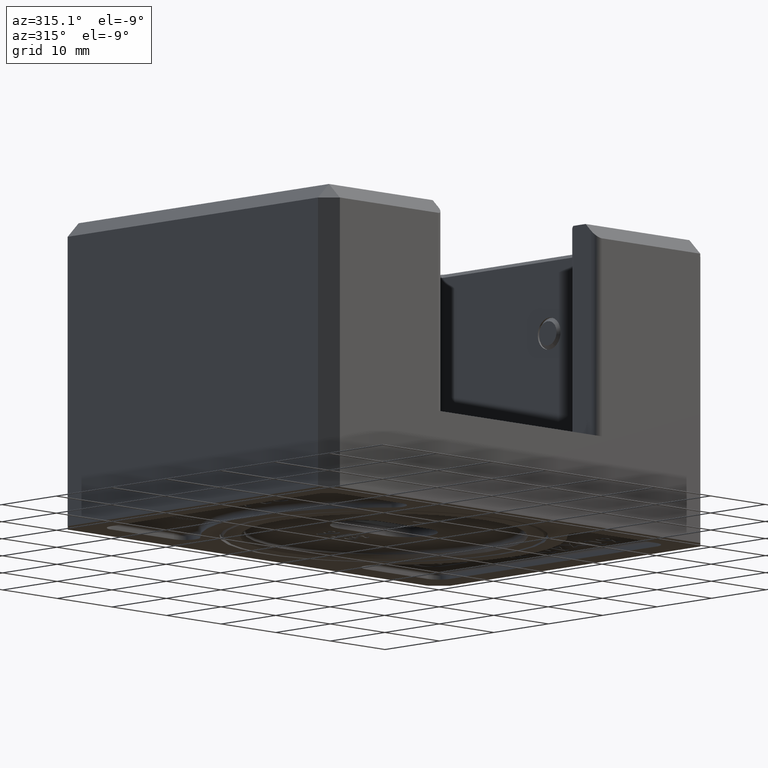
[diagram: clean part render]
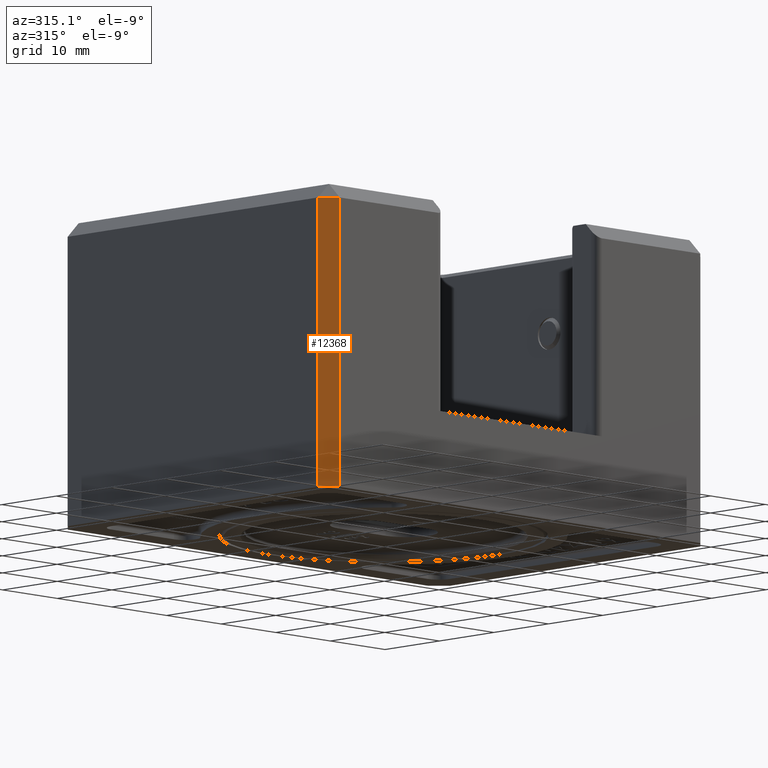
[diagram: same view with one face highlighted and labeled with its STEP entity id]
A machine part, auxiliary view. The second image highlights one B-rep face of the part: STEP entity #12368.
In plain terms, the highlighted planar face has unit normal (0.7071, 0.7071, 0).
Its self-contained STEP definition (entity closure, byte-faithful):
#474 = CARTESIAN_POINT ( 'NONE',  ( -32.99999999999997900, -24.99999999999999600, 20.00000000000000000 ) ) ;
#2286 = VERTEX_POINT ( 'NONE', #4293 ) ;
#2822 = CARTESIAN_POINT ( 'NONE',  ( -32.99999999999997900, -24.99999999999999600, 17.99999999999997200 ) ) ;
#4293 = CARTESIAN_POINT ( 'NONE',  ( -34.99999999999999300, -22.99999999999996800, 17.99999999999997200 ) ) ;
#4561 = ORIENTED_EDGE ( 'NONE', *, *, #24142, .F. ) ;
#4934 = EDGE_CURVE ( 'NONE', #13287, #16024, #17014, .T. ) ;
#6934 = FACE_OUTER_BOUND ( 'NONE', #8117, .T. ) ;
#6946 = CARTESIAN_POINT ( 'NONE',  ( -32.99999999999997900, -24.99999999999999600, -20.00000000000000000 ) ) ;
#7082 = VECTOR ( 'NONE', #10556, 1000.000000000000100 ) ;
#7673 = ORIENTED_EDGE ( 'NONE', *, *, #13701, .F. ) ;
#7913 = ORIENTED_EDGE ( 'NONE', *, *, #4934, .F. ) ;
#8117 = EDGE_LOOP ( 'NONE', ( #7913, #4561, #22567, #7673 ) ) ;
#9103 = EDGE_CURVE ( 'NONE', #2286, #24828, #17492, .T. ) ;
#9862 = DIRECTION ( 'NONE',  ( 0.0000000000000000000, 0.0000000000000000000, -1.000000000000000000 ) ) ;
#10137 = AXIS2_PLACEMENT_3D ( 'NONE', #474, #23928, #18249 ) ;
#10556 = DIRECTION ( 'NONE',  ( 0.7071067811865451300, -0.7071067811865500200, 2.775557561562892000E-017 ) ) ;
#10601 = LINE ( 'NONE', #18688, #20688 ) ;
#12053 = LINE ( 'NONE', #25284, #12945 ) ;
#12368 = ADVANCED_FACE ( 'NONE', ( #6934 ), #20201, .F. ) ;
#12945 = VECTOR ( 'NONE', #9862, 1000.000000000000000 ) ;
#13287 = VERTEX_POINT ( 'NONE', #16223 ) ;
#13701 = EDGE_CURVE ( 'NONE', #16024, #2286, #10601, .T. ) ;
#14487 = DIRECTION ( 'NONE',  ( 0.0000000000000000000, 0.0000000000000000000, 1.000000000000000000 ) ) ;
#16024 = VERTEX_POINT ( 'NONE', #18266 ) ;
#16223 = CARTESIAN_POINT ( 'NONE',  ( -32.99999999999997900, -24.99999999999999600, -20.00000000000000000 ) ) ;
#17014 = LINE ( 'NONE', #6946, #22802 ) ;
#17492 = LINE ( 'NONE', #23223, #7082 ) ;
#18249 = DIRECTION ( 'NONE',  ( -0.0000000000000000000, 0.0000000000000000000, -1.000000000000000000 ) ) ;
#18266 = CARTESIAN_POINT ( 'NONE',  ( -34.99999999999999300, -22.99999999999996800, -20.00000000000000000 ) ) ;
#18688 = CARTESIAN_POINT ( 'NONE',  ( -34.99999999999999300, -22.99999999999996800, 20.00000000000000000 ) ) ;
#20201 = PLANE ( 'NONE',  #10137 ) ;
#20688 = VECTOR ( 'NONE', #14487, 1000.000000000000000 ) ;
#22567 = ORIENTED_EDGE ( 'NONE', *, *, #9103, .F. ) ;
#22802 = VECTOR ( 'NONE', #24195, 1000.000000000000100 ) ;
#23223 = CARTESIAN_POINT ( 'NONE',  ( -32.99999999999997900, -24.99999999999999600, 17.99999999999997200 ) ) ;
#23928 = DIRECTION ( 'NONE',  ( 0.7071067811865500200, 0.7071067811865451300, 0.0000000000000000000 ) ) ;
#24142 = EDGE_CURVE ( 'NONE', #24828, #13287, #12053, .T. ) ;
#24195 = DIRECTION ( 'NONE',  ( -0.7071067811865451300, 0.7071067811865500200, -0.0000000000000000000 ) ) ;
#24828 = VERTEX_POINT ( 'NONE', #2822 ) ;
#25284 = CARTESIAN_POINT ( 'NONE',  ( -32.99999999999997900, -24.99999999999999600, 20.00000000000000000 ) ) ;